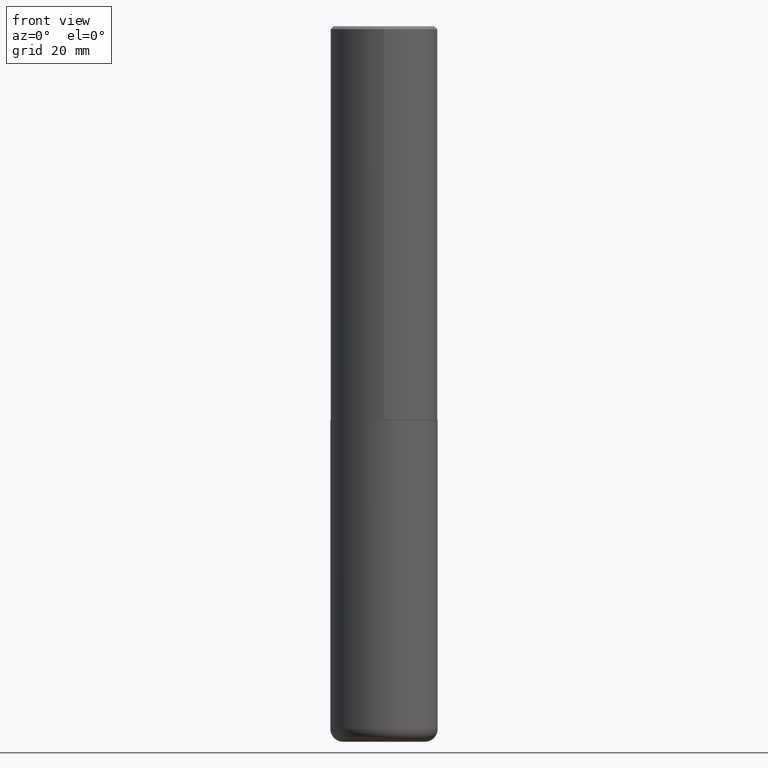
[diagram: clean part render]
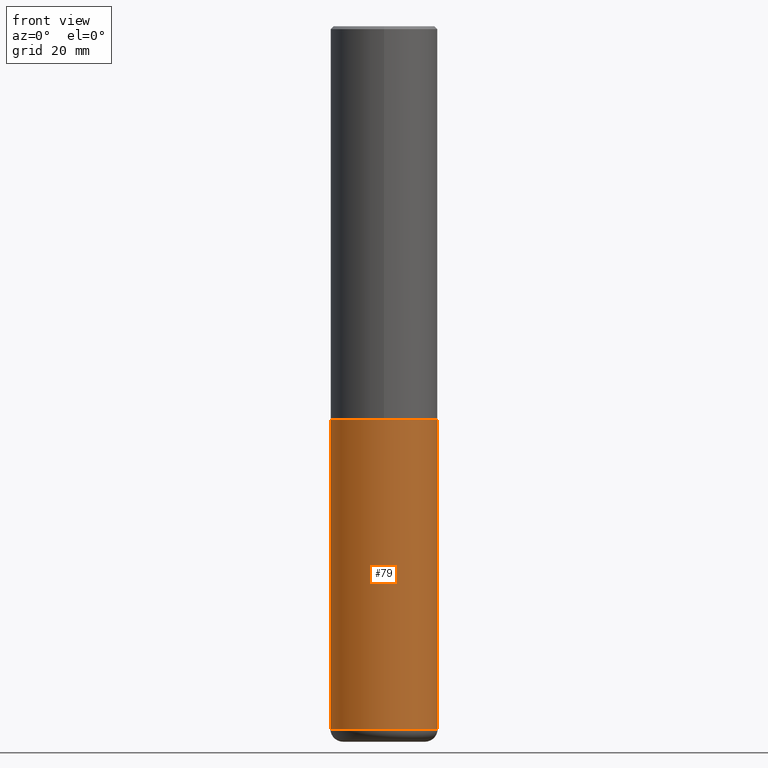
[diagram: same view with one face highlighted and labeled with its STEP entity id]
A machine part, front view. The second image highlights one B-rep face of the part: STEP entity #79.
In plain terms, the highlighted cylindrical surface (partial cylindrical patch) has radius 9.525 mm, axis along (-0, 0, 1).
Its self-contained STEP definition (entity closure, byte-faithful):
#4 = CIRCLE ( 'NONE', #298, 0.3749999999999999445 ) ;
#25 = DIRECTION ( 'NONE',  ( -2.445468806185136597E-29, 3.491481338843145583E-15, 1.000000000000000000 ) ) ;
#44 = DIRECTION ( 'NONE',  ( 1.000000000000000000, -6.982962677686266711E-15, 4.876176775795935793E-29 ) ) ;
#51 = VERTEX_POINT ( 'NONE', #199 ) ;
#64 = AXIS2_PLACEMENT_3D ( 'NONE', #207, #337, #44 ) ;
#79 = ADVANCED_FACE ( 'NONE', ( #240 ), #368, .T. ) ;
#104 = EDGE_CURVE ( 'NONE', #51, #362, #4, .T. ) ;
#107 = CARTESIAN_POINT ( 'NONE',  ( -0.3750000000000000555, -1.070783826866887333E-14, -2.750000000000000000 ) ) ;
#109 = VECTOR ( 'NONE', #214, 39.37007874015748143 ) ;
#113 = EDGE_CURVE ( 'NONE', #328, #155, #278, .T. ) ;
#125 = CARTESIAN_POINT ( 'NONE',  ( 0.3750000000000000555, -1.222018468595100145E-14, -2.750000000000000000 ) ) ;
#129 = DIRECTION ( 'NONE',  ( 1.000000000000000000, -6.982962677686266711E-15, 0.000000000000000000 ) ) ;
#144 = ORIENTED_EDGE ( 'NONE', *, *, #113, .F. ) ;
#155 = VERTEX_POINT ( 'NONE', #125 ) ;
#163 = EDGE_CURVE ( 'NONE', #362, #155, #248, .T. ) ;
#176 = CARTESIAN_POINT ( 'NONE',  ( 1.200725183836902132E-28, -1.714317337371984662E-14, -4.910000000000000142 ) ) ;
#186 = CARTESIAN_POINT ( 'NONE',  ( 6.725039217009124520E-29, -9.601573681818649859E-15, -2.750000000000000000 ) ) ;
#191 = DIRECTION ( 'NONE',  ( 1.000000000000000000, -6.982962677686269077E-15, 0.000000000000000000 ) ) ;
#199 = CARTESIAN_POINT ( 'NONE',  ( -0.3749999999999999445, -1.447863811461947092E-14, -4.910000000000000142 ) ) ;
#205 = CARTESIAN_POINT ( 'NONE',  ( 0.3749999999999999445, -1.976178437785219664E-14, -4.910000000000000142 ) ) ;
#207 = CARTESIAN_POINT ( 'NONE',  ( 0.000000000000000000, 0.000000000000000000, 0.000000000000000000 ) ) ;
#211 = EDGE_CURVE ( 'NONE', #51, #328, #359, .T. ) ;
#214 = DIRECTION ( 'NONE',  ( -2.445468806185136877E-29, 3.491481338843145188E-15, 1.000000000000000000 ) ) ;
#215 = ORIENTED_EDGE ( 'NONE', *, *, #104, .T. ) ;
#240 = FACE_OUTER_BOUND ( 'NONE', #312, .T. ) ;
#248 = LINE ( 'NONE', #378, #109 ) ;
#249 = ORIENTED_EDGE ( 'NONE', *, *, #211, .F. ) ;
#258 = AXIS2_PLACEMENT_3D ( 'NONE', #186, #25, #129 ) ;
#278 = CIRCLE ( 'NONE', #258, 0.3750000000000000555 ) ;
#295 = DIRECTION ( 'NONE',  ( -2.445468806185136597E-29, 3.491481338843145583E-15, 1.000000000000000000 ) ) ;
#298 = AXIS2_PLACEMENT_3D ( 'NONE', #176, #295, #191 ) ;
#312 = EDGE_LOOP ( 'NONE', ( #249, #215, #336, #144 ) ) ;
#315 = VECTOR ( 'NONE', #324, 39.37007874015748143 ) ;
#324 = DIRECTION ( 'NONE',  ( -2.445468806185136877E-29, 3.491481338843145188E-15, 1.000000000000000000 ) ) ;
#328 = VERTEX_POINT ( 'NONE', #107 ) ;
#336 = ORIENTED_EDGE ( 'NONE', *, *, #163, .T. ) ;
#337 = DIRECTION ( 'NONE',  ( -2.445468806185136597E-29, 3.491481338843145583E-15, 1.000000000000000000 ) ) ;
#355 = CARTESIAN_POINT ( 'NONE',  ( -0.3749999999999999445, 2.664535259100375303E-15, -1.844600658845589318E-29 ) ) ;
#359 = LINE ( 'NONE', #355, #315 ) ;
#362 = VERTEX_POINT ( 'NONE', #205 ) ;
#368 = CYLINDRICAL_SURFACE ( 'NONE', #64, 0.3749999999999999445 ) ;
#378 = CARTESIAN_POINT ( 'NONE',  ( 0.3749999999999999445, -2.618611004132349622E-15, 1.828566290923475642E-29 ) ) ;